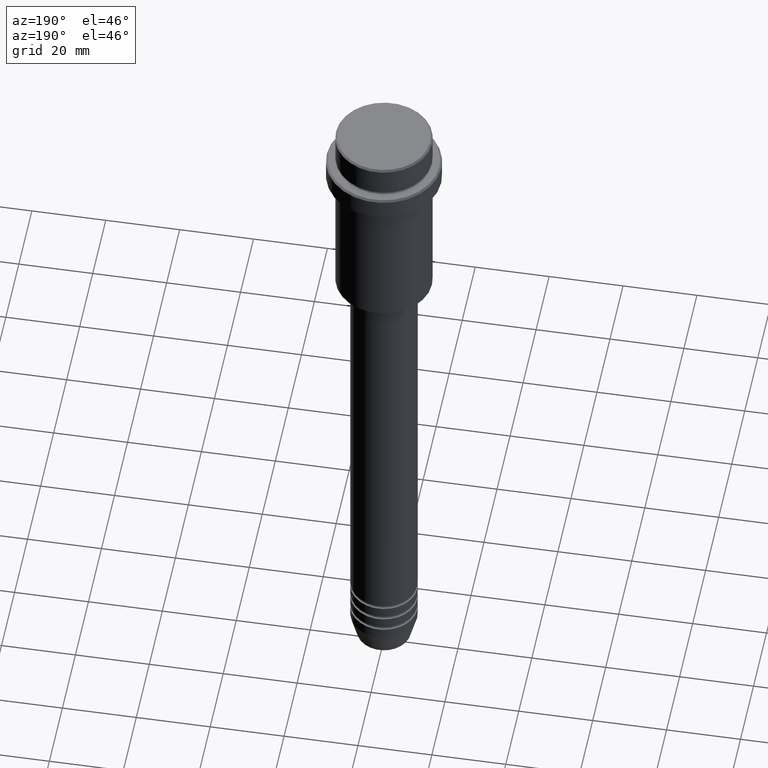
[diagram: clean part render]
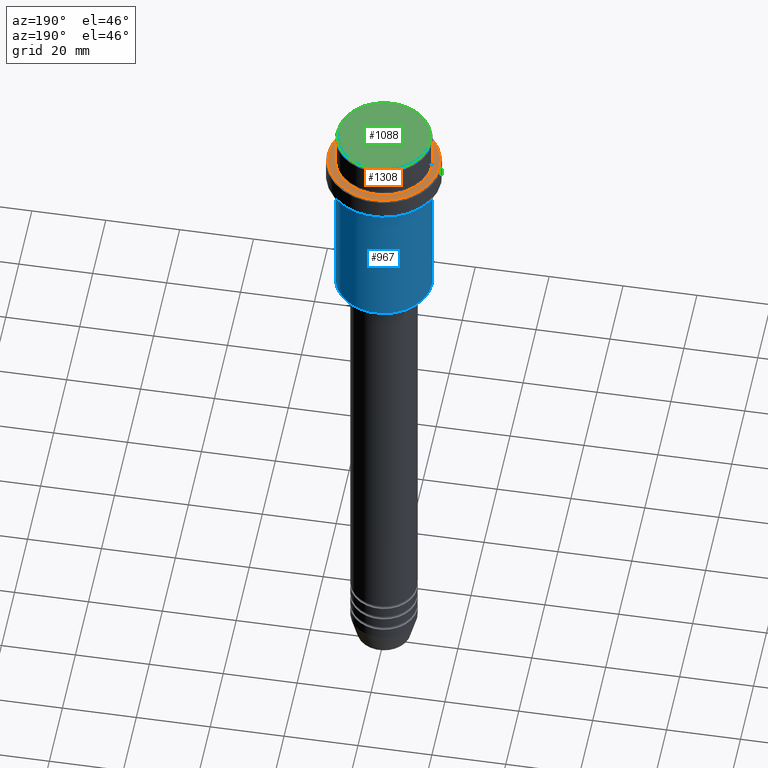
[diagram: same view with three faces highlighted in distinct colors, each labeled with its STEP entity id]
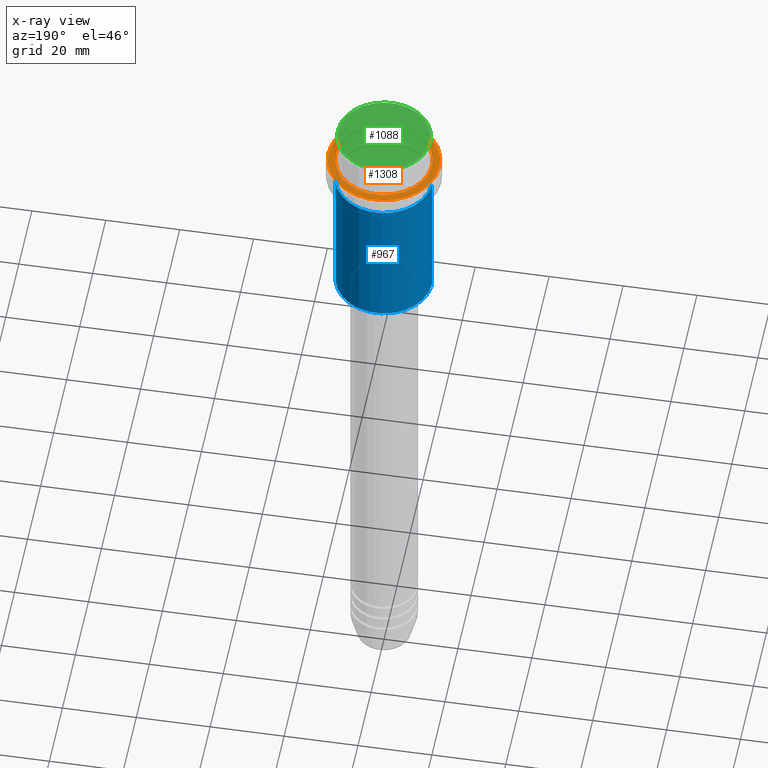
[diagram: x-ray of the same camera — body ghosted, the three highlighted faces saturated]
A machine part, auxiliary view with three faces highlighted in distinct colors.
The next image is the same camera in x-ray (body ghosted, the three faces saturated) — at least one of them is partly hidden behind the body in this view.
Their STEP definitions:

[orange] entity #1308 — the highlighted planar face has unit normal (0, -0, 1).
#13 = AXIS2_PLACEMENT_3D ( 'NONE', #198, #444, #1328 ) ;
#76 = ORIENTED_EDGE ( 'NONE', *, *, #1283, .T. ) ;
#86 = AXIS2_PLACEMENT_3D ( 'NONE', #238, #987, #142 ) ;
#115 = EDGE_CURVE ( 'NONE', #900, #349, #594, .T. ) ;
#142 = DIRECTION ( 'NONE',  ( 1.000000000000000000, 0.000000000000000000, 0.000000000000000000 ) ) ;
#151 = CARTESIAN_POINT ( 'NONE',  ( 0.000000000000000000, 0.000000000000000000, -9.000000000000000000 ) ) ;
#173 = ORIENTED_EDGE ( 'NONE', *, *, #1275, .T. ) ;
#198 = CARTESIAN_POINT ( 'NONE',  ( 0.000000000000000000, 0.000000000000000000, -9.000000000000000000 ) ) ;
#228 = CARTESIAN_POINT ( 'NONE',  ( 0.000000000000000000, 0.000000000000000000, -9.000000000000000000 ) ) ;
#238 = CARTESIAN_POINT ( 'NONE',  ( 0.000000000000000000, 12.49999999999999289, -9.000000000000000000 ) ) ;
#277 = CARTESIAN_POINT ( 'NONE',  ( 12.99999999999999467, 0.000000000000000000, -9.000000000000000000 ) ) ;
#349 = VERTEX_POINT ( 'NONE', #277 ) ;
#407 = VERTEX_POINT ( 'NONE', #650 ) ;
#444 = DIRECTION ( 'NONE',  ( -0.000000000000000000, -0.000000000000000000, 1.000000000000000000 ) ) ;
#450 = FACE_OUTER_BOUND ( 'NONE', #1089, .T. ) ;
#457 = CIRCLE ( 'NONE', #768, 12.99999999999999467 ) ;
#464 = DIRECTION ( 'NONE',  ( 1.000000000000000000, 0.000000000000000000, 0.000000000000000000 ) ) ;
#489 = CARTESIAN_POINT ( 'NONE',  ( 0.000000000000000000, 0.000000000000000000, -9.000000000000000000 ) ) ;
#524 = ORIENTED_EDGE ( 'NONE', *, *, #115, .T. ) ;
#572 = AXIS2_PLACEMENT_3D ( 'NONE', #489, #1221, #787 ) ;
#594 = CIRCLE ( 'NONE', #572, 12.99999999999999467 ) ;
#650 = CARTESIAN_POINT ( 'NONE',  ( -14.99999999999998579, 0.000000000000000000, -9.000000000000000000 ) ) ;
#768 = AXIS2_PLACEMENT_3D ( 'NONE', #151, #1331, #464 ) ;
#775 = FACE_BOUND ( 'NONE', #1193, .T. ) ;
#787 = DIRECTION ( 'NONE',  ( 1.000000000000000000, 0.000000000000000000, 0.000000000000000000 ) ) ;
#900 = VERTEX_POINT ( 'NONE', #1209 ) ;
#936 = CIRCLE ( 'NONE', #13, 14.99999999999998579 ) ;
#987 = DIRECTION ( 'NONE',  ( 0.000000000000000000, -0.000000000000000000, 1.000000000000000000 ) ) ;
#998 = EDGE_CURVE ( 'NONE', #349, #900, #457, .T. ) ;
#1089 = EDGE_LOOP ( 'NONE', ( #76, #173 ) ) ;
#1099 = DIRECTION ( 'NONE',  ( 1.000000000000000000, 0.000000000000000000, 0.000000000000000000 ) ) ;
#1115 = DIRECTION ( 'NONE',  ( -0.000000000000000000, -0.000000000000000000, 1.000000000000000000 ) ) ;
#1193 = EDGE_LOOP ( 'NONE', ( #1208, #524 ) ) ;
#1208 = ORIENTED_EDGE ( 'NONE', *, *, #998, .T. ) ;
#1209 = CARTESIAN_POINT ( 'NONE',  ( -12.99999999999999467, 1.592040838891558504E-15, -9.000000000000000000 ) ) ;
#1218 = CARTESIAN_POINT ( 'NONE',  ( 14.99999999999998579, 1.867586368699712587E-15, -9.000000000000000000 ) ) ;
#1221 = DIRECTION ( 'NONE',  ( 0.000000000000000000, 0.000000000000000000, -1.000000000000000000 ) ) ;
#1228 = PLANE ( 'NONE',  #86 ) ;
#1275 = EDGE_CURVE ( 'NONE', #1320, #407, #936, .T. ) ;
#1283 = EDGE_CURVE ( 'NONE', #407, #1320, #1360, .T. ) ;
#1308 = ADVANCED_FACE ( 'NONE', ( #450, #775 ), #1228, .T. ) ;
#1320 = VERTEX_POINT ( 'NONE', #1218 ) ;
#1321 = AXIS2_PLACEMENT_3D ( 'NONE', #228, #1115, #1099 ) ;
#1328 = DIRECTION ( 'NONE',  ( 1.000000000000000000, 0.000000000000000000, 0.000000000000000000 ) ) ;
#1331 = DIRECTION ( 'NONE',  ( 0.000000000000000000, 0.000000000000000000, -1.000000000000000000 ) ) ;
#1360 = CIRCLE ( 'NONE', #1321, 14.99999999999998579 ) ;

[blue] entity #967 — the highlighted cylindrical surface (partial cylindrical patch) has radius 13 mm, axis along (-0, -0, 1).
#33 = DIRECTION ( 'NONE',  ( 1.000000000000000000, 0.000000000000000000, 0.000000000000000000 ) ) ;
#137 = ORIENTED_EDGE ( 'NONE', *, *, #990, .F. ) ;
#149 = VERTEX_POINT ( 'NONE', #800 ) ;
#189 = CARTESIAN_POINT ( 'NONE',  ( 0.000000000000000000, 0.000000000000000000, -16.00000000000000000 ) ) ;
#216 = EDGE_LOOP ( 'NONE', ( #814, #1357, #783, #137 ) ) ;
#223 = AXIS2_PLACEMENT_3D ( 'NONE', #837, #1090, #535 ) ;
#301 = VERTEX_POINT ( 'NONE', #1287 ) ;
#303 = LINE ( 'NONE', #1178, #1081 ) ;
#309 = AXIS2_PLACEMENT_3D ( 'NONE', #189, #1159, #1382 ) ;
#310 = EDGE_CURVE ( 'NONE', #326, #817, #303, .T. ) ;
#326 = VERTEX_POINT ( 'NONE', #1160 ) ;
#331 = CIRCLE ( 'NONE', #309, 13.00000000000000000 ) ;
#535 = DIRECTION ( 'NONE',  ( -1.000000000000000000, 0.000000000000000000, 0.000000000000000000 ) ) ;
#586 = CARTESIAN_POINT ( 'NONE',  ( 0.000000000000000000, 0.000000000000000000, 0.000000000000000000 ) ) ;
#641 = VECTOR ( 'NONE', #819, 1000.000000000000000 ) ;
#644 = DIRECTION ( 'NONE',  ( -0.000000000000000000, -0.000000000000000000, 1.000000000000000000 ) ) ;
#671 = EDGE_CURVE ( 'NONE', #301, #817, #331, .T. ) ;
#783 = ORIENTED_EDGE ( 'NONE', *, *, #671, .F. ) ;
#786 = EDGE_CURVE ( 'NONE', #149, #326, #1177, .T. ) ;
#800 = CARTESIAN_POINT ( 'NONE',  ( 13.00000000000000000, 0.000000000000000000, -54.49999999999999289 ) ) ;
#814 = ORIENTED_EDGE ( 'NONE', *, *, #786, .T. ) ;
#817 = VERTEX_POINT ( 'NONE', #984 ) ;
#819 = DIRECTION ( 'NONE',  ( -0.000000000000000000, -0.000000000000000000, 1.000000000000000000 ) ) ;
#837 = CARTESIAN_POINT ( 'NONE',  ( 0.000000000000000000, 0.000000000000000000, -54.49999999999999289 ) ) ;
#930 = CYLINDRICAL_SURFACE ( 'NONE', #1270, 13.00000000000000000 ) ;
#967 = ADVANCED_FACE ( 'NONE', ( #1239 ), #930, .T. ) ;
#984 = CARTESIAN_POINT ( 'NONE',  ( -13.00000000000000000, 1.592040838891559095E-15, -16.00000000000000000 ) ) ;
#990 = EDGE_CURVE ( 'NONE', #149, #301, #1121, .T. ) ;
#1013 = CARTESIAN_POINT ( 'NONE',  ( 13.00000000000000000, 0.000000000000000000, 0.000000000000000000 ) ) ;
#1081 = VECTOR ( 'NONE', #644, 1000.000000000000000 ) ;
#1090 = DIRECTION ( 'NONE',  ( -0.000000000000000000, -0.000000000000000000, 1.000000000000000000 ) ) ;
#1121 = LINE ( 'NONE', #1013, #641 ) ;
#1159 = DIRECTION ( 'NONE',  ( -0.000000000000000000, -0.000000000000000000, 1.000000000000000000 ) ) ;
#1160 = CARTESIAN_POINT ( 'NONE',  ( -13.00000000000000000, 1.592040838891559095E-15, -54.49999999999999289 ) ) ;
#1177 = CIRCLE ( 'NONE', #223, 13.00000000000000000 ) ;
#1178 = CARTESIAN_POINT ( 'NONE',  ( -13.00000000000000000, 1.592040838891559095E-15, 0.000000000000000000 ) ) ;
#1239 = FACE_OUTER_BOUND ( 'NONE', #216, .T. ) ;
#1270 = AXIS2_PLACEMENT_3D ( 'NONE', #586, #1352, #33 ) ;
#1287 = CARTESIAN_POINT ( 'NONE',  ( 13.00000000000000000, 0.000000000000000000, -16.00000000000000000 ) ) ;
#1352 = DIRECTION ( 'NONE',  ( -0.000000000000000000, -0.000000000000000000, 1.000000000000000000 ) ) ;
#1357 = ORIENTED_EDGE ( 'NONE', *, *, #310, .T. ) ;
#1382 = DIRECTION ( 'NONE',  ( 1.000000000000000000, 0.000000000000000000, 0.000000000000000000 ) ) ;

[green] entity #1088 — the highlighted planar face has unit normal (0, -0, 1).
#30 = CARTESIAN_POINT ( 'NONE',  ( 12.50000000000004086, 1.561424668912877675E-15, 0.000000000000000000 ) ) ;
#129 = AXIS2_PLACEMENT_3D ( 'NONE', #254, #683, #1112 ) ;
#135 = DIRECTION ( 'NONE',  ( -0.000000000000000000, -0.000000000000000000, 1.000000000000000000 ) ) ;
#146 = DIRECTION ( 'NONE',  ( 1.000000000000000000, 0.000000000000000000, 0.000000000000000000 ) ) ;
#157 = EDGE_LOOP ( 'NONE', ( #394, #1101 ) ) ;
#207 = VERTEX_POINT ( 'NONE', #358 ) ;
#254 = CARTESIAN_POINT ( 'NONE',  ( 0.000000000000000000, 0.000000000000000000, 0.000000000000000000 ) ) ;
#358 = CARTESIAN_POINT ( 'NONE',  ( -12.50000000000004086, 0.000000000000000000, 0.000000000000000000 ) ) ;
#394 = ORIENTED_EDGE ( 'NONE', *, *, #1037, .T. ) ;
#400 = CIRCLE ( 'NONE', #129, 12.50000000000004086 ) ;
#575 = FACE_OUTER_BOUND ( 'NONE', #157, .T. ) ;
#683 = DIRECTION ( 'NONE',  ( -0.000000000000000000, -0.000000000000000000, 1.000000000000000000 ) ) ;
#686 = DIRECTION ( 'NONE',  ( 1.000000000000000000, 0.000000000000000000, 0.000000000000000000 ) ) ;
#687 = PLANE ( 'NONE',  #1391 ) ;
#1008 = DIRECTION ( 'NONE',  ( 0.000000000000000000, -0.000000000000000000, 1.000000000000000000 ) ) ;
#1037 = EDGE_CURVE ( 'NONE', #207, #1324, #400, .T. ) ;
#1057 = AXIS2_PLACEMENT_3D ( 'NONE', #1284, #135, #686 ) ;
#1088 = ADVANCED_FACE ( 'NONE', ( #575 ), #687, .T. ) ;
#1101 = ORIENTED_EDGE ( 'NONE', *, *, #1264, .T. ) ;
#1112 = DIRECTION ( 'NONE',  ( 1.000000000000000000, 0.000000000000000000, 0.000000000000000000 ) ) ;
#1116 = CARTESIAN_POINT ( 'NONE',  ( 0.000000000000000000, 0.000000000000000000, 0.000000000000000000 ) ) ;
#1132 = CIRCLE ( 'NONE', #1057, 12.50000000000004086 ) ;
#1264 = EDGE_CURVE ( 'NONE', #1324, #207, #1132, .T. ) ;
#1284 = CARTESIAN_POINT ( 'NONE',  ( 0.000000000000000000, 0.000000000000000000, 0.000000000000000000 ) ) ;
#1324 = VERTEX_POINT ( 'NONE', #30 ) ;
#1391 = AXIS2_PLACEMENT_3D ( 'NONE', #1116, #1008, #146 ) ;